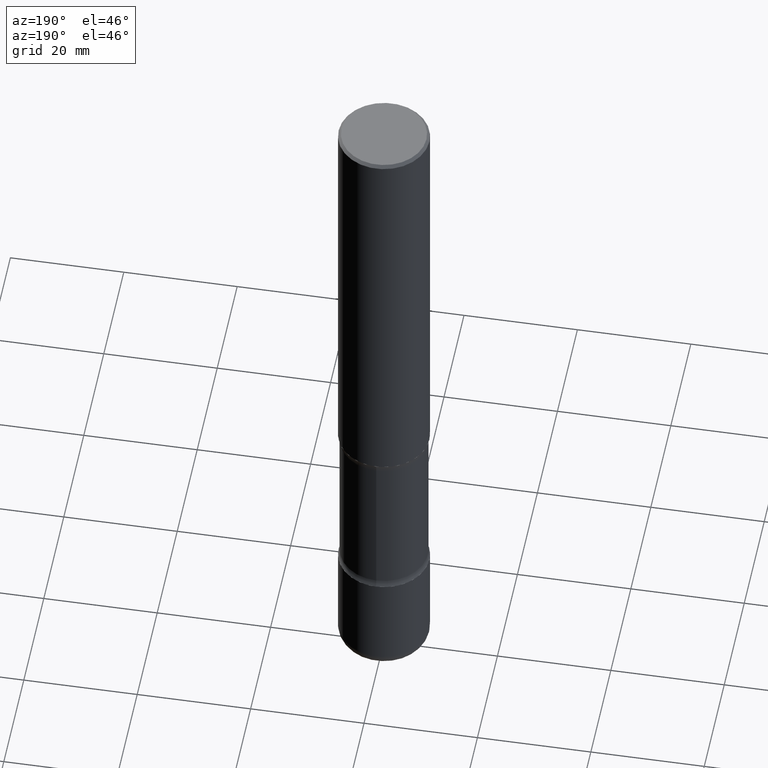
[diagram: clean part render]
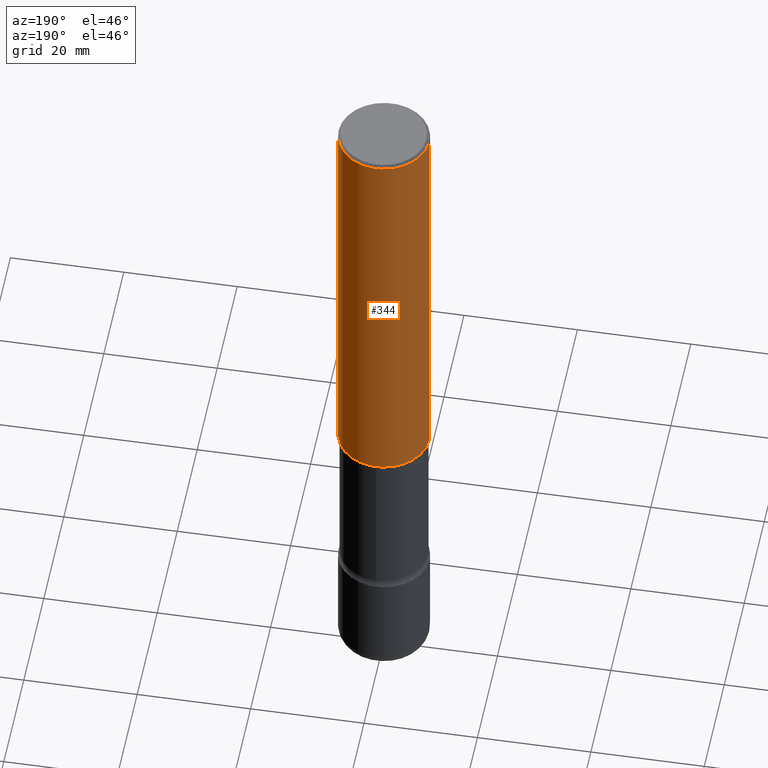
[diagram: same view with one face highlighted and labeled with its STEP entity id]
A machine part, auxiliary view. The second image highlights one B-rep face of the part: STEP entity #344.
In plain terms, the highlighted cylindrical surface (partial cylindrical patch) has radius 7.9997 mm, axis along (-0, 0, 1).
Its self-contained STEP definition (entity closure, byte-faithful):
#14 = DIRECTION ( 'NONE',  ( 1.000000000000000000, -6.982962677686265922E-15, 0.000000000000000000 ) ) ;
#21 = LINE ( 'NONE', #234, #167 ) ;
#26 = LINE ( 'NONE', #32, #236 ) ;
#30 = EDGE_CURVE ( 'NONE', #117, #390, #437, .T. ) ;
#32 = CARTESIAN_POINT ( 'NONE',  ( 0.3149500000000000077, -2.199284095337289871E-15, 1.535751875536930130E-29 ) ) ;
#62 = DIRECTION ( 'NONE',  ( 1.000000000000000000, -6.982962677686266711E-15, 4.876176775795936353E-29 ) ) ;
#63 = CARTESIAN_POINT ( 'NONE',  ( 4.890937612370289799E-31, -6.982962677686315028E-17, -0.02000000000000006981 ) ) ;
#70 = FACE_OUTER_BOUND ( 'NONE', #487, .T. ) ;
#91 = EDGE_CURVE ( 'NONE', #485, #117, #26, .T. ) ;
#98 = CIRCLE ( 'NONE', #256, 0.3149500000000001743 ) ;
#117 = VERTEX_POINT ( 'NONE', #174 ) ;
#129 = ORIENTED_EDGE ( 'NONE', *, *, #91, .F. ) ;
#167 = VECTOR ( 'NONE', #454, 39.37007874015748143 ) ;
#174 = CARTESIAN_POINT ( 'NONE',  ( 0.3149499999999998967, -2.230543471175006266E-15, -0.02000000000000006981 ) ) ;
#182 = DIRECTION ( 'NONE',  ( -2.445468806185136877E-29, 3.491481338843145188E-15, 1.000000000000000000 ) ) ;
#184 = DIRECTION ( 'NONE',  ( -2.445468806185136597E-29, 3.491481338843145583E-15, 1.000000000000000000 ) ) ;
#191 = DIRECTION ( 'NONE',  ( 1.000000000000000000, -6.982962677686265922E-15, 0.000000000000000000 ) ) ;
#195 = CARTESIAN_POINT ( 'NONE',  ( 0.3149500000000001743, -1.250893019267332998E-14, -2.952799999999999869 ) ) ;
#216 = VERTEX_POINT ( 'NONE', #477 ) ;
#234 = CARTESIAN_POINT ( 'NONE',  ( -0.3149500000000000077, 2.237854346276435590E-15, -1.549218606675782676E-29 ) ) ;
#235 = CYLINDRICAL_SURFACE ( 'NONE', #237, 0.3149500000000000077 ) ;
#236 = VECTOR ( 'NONE', #182, 39.37007874015748143 ) ;
#237 = AXIS2_PLACEMENT_3D ( 'NONE', #404, #184, #62 ) ;
#244 = AXIS2_PLACEMENT_3D ( 'NONE', #63, #313, #191 ) ;
#253 = EDGE_CURVE ( 'NONE', #485, #216, #98, .T. ) ;
#256 = AXIS2_PLACEMENT_3D ( 'NONE', #502, #541, #14 ) ;
#313 = DIRECTION ( 'NONE',  ( -2.445468806185136597E-29, 3.491481338843145583E-15, 1.000000000000000000 ) ) ;
#339 = EDGE_CURVE ( 'NONE', #216, #390, #21, .T. ) ;
#344 = ADVANCED_FACE ( 'NONE', ( #70 ), #235, .T. ) ;
#346 = ORIENTED_EDGE ( 'NONE', *, *, #30, .F. ) ;
#349 = ORIENTED_EDGE ( 'NONE', *, *, #253, .T. ) ;
#390 = VERTEX_POINT ( 'NONE', #409 ) ;
#404 = CARTESIAN_POINT ( 'NONE',  ( 0.000000000000000000, 0.000000000000000000, 0.000000000000000000 ) ) ;
#409 = CARTESIAN_POINT ( 'NONE',  ( -0.3149499999999998967, 2.129454468560425784E-15, -0.02000000000000006981 ) ) ;
#437 = CIRCLE ( 'NONE', #244, 0.3149499999999998967 ) ;
#454 = DIRECTION ( 'NONE',  ( -2.445468806185136877E-29, 3.491481338843145188E-15, 1.000000000000000000 ) ) ;
#477 = CARTESIAN_POINT ( 'NONE',  ( -0.3149500000000001743, -2.951883515780012562E-15, -2.952799999999999869 ) ) ;
#485 = VERTEX_POINT ( 'NONE', #195 ) ;
#487 = EDGE_LOOP ( 'NONE', ( #349, #495, #346, #129 ) ) ;
#495 = ORIENTED_EDGE ( 'NONE', *, *, #339, .T. ) ;
#502 = CARTESIAN_POINT ( 'NONE',  ( 7.220980290903470182E-29, -1.030964609733603853E-14, -2.952799999999999869 ) ) ;
#541 = DIRECTION ( 'NONE',  ( -2.445468806185136597E-29, 3.491481338843145583E-15, 1.000000000000000000 ) ) ;